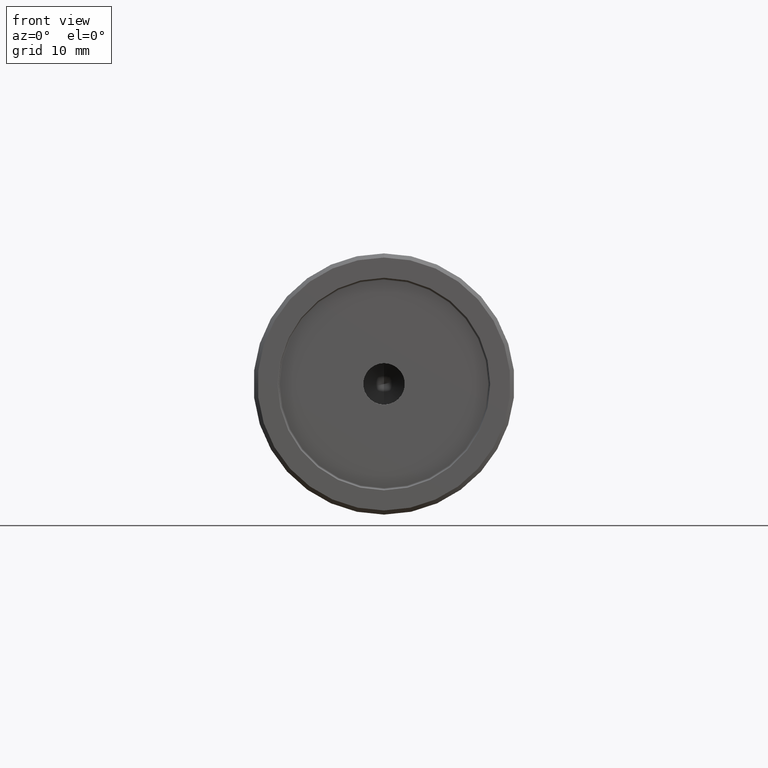
[diagram: clean part render]
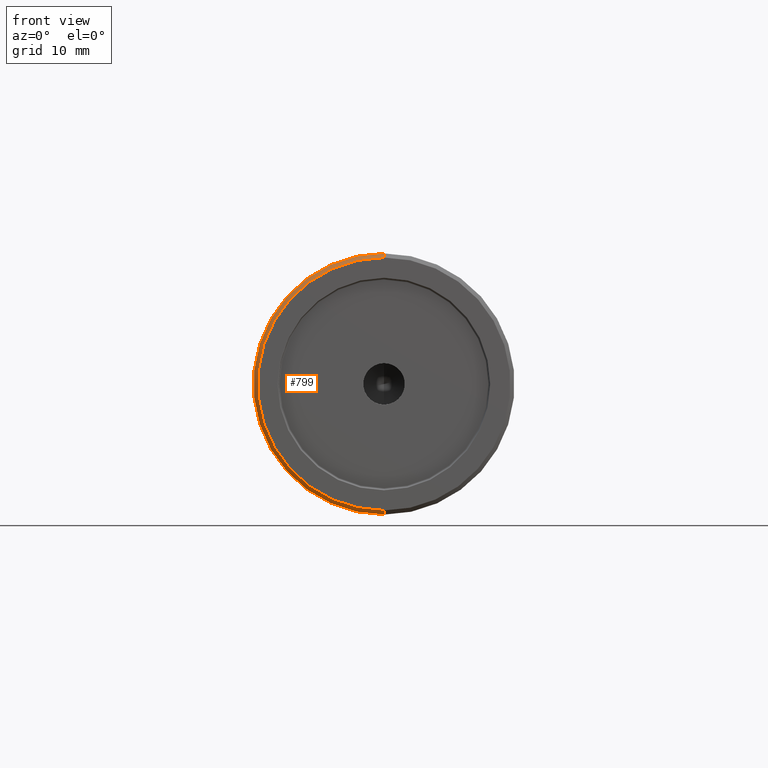
[diagram: same view with one face highlighted and labeled with its STEP entity id]
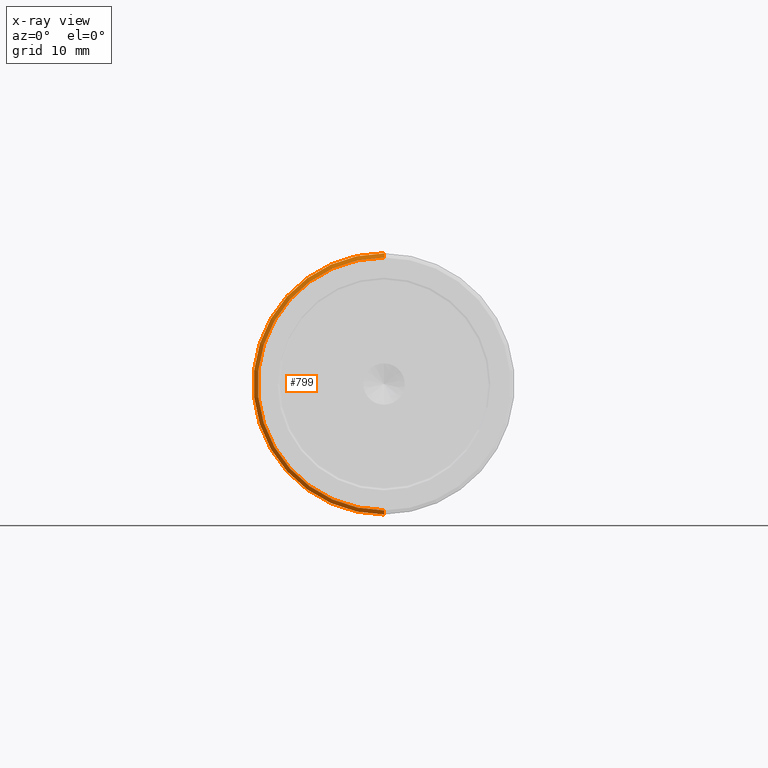
[diagram: x-ray of the same camera — body ghosted, the highlighted face saturated]
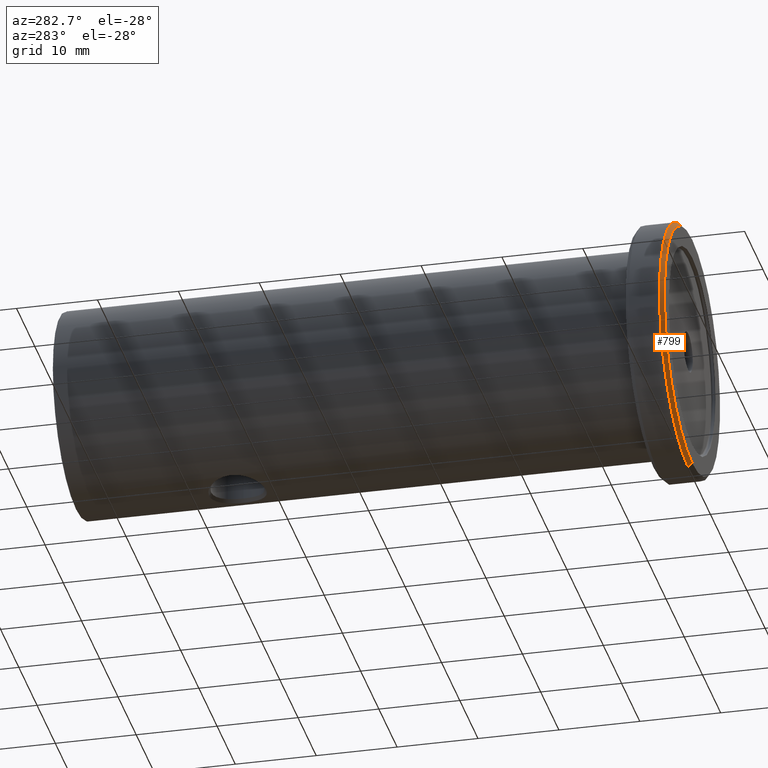
[diagram: same view with one face highlighted and labeled with its STEP entity id]
A machine part, front view. The second image highlights one B-rep face of the part: STEP entity #799.
The next image is the same camera in x-ray: the body ghosted, the highlighted face saturated — about 0% of this face is hidden behind the body in this view.
A second angle (auxiliary view) of the same face is appended — the face is thin or edge-on in the first view.
In plain terms, the highlighted conical surface has half-angle 45 deg.
Its self-contained STEP definition (entity closure, byte-faithful):
#10 = ORIENTED_EDGE ( 'NONE', *, *, #63, .T. ) ;
#27 = AXIS2_PLACEMENT_3D ( 'NONE', #411, #832, #514 ) ;
#63 = EDGE_CURVE ( 'NONE', #218, #770, #1310, .T. ) ;
#94 = DIRECTION ( 'NONE',  ( -0.000000000000000000, -1.000000000000000000, -0.000000000000000000 ) ) ;
#126 = VERTEX_POINT ( 'NONE', #1365 ) ;
#136 = ORIENTED_EDGE ( 'NONE', *, *, #381, .F. ) ;
#173 = CARTESIAN_POINT ( 'NONE',  ( 0.000000000000000000, -1.734723475976807094E-15, 0.000000000000000000 ) ) ;
#218 = VERTEX_POINT ( 'NONE', #443 ) ;
#245 = AXIS2_PLACEMENT_3D ( 'NONE', #725, #94, #509 ) ;
#250 = DIRECTION ( 'NONE',  ( 0.000000000000000000, 0.000000000000000000, -1.000000000000000000 ) ) ;
#344 = VECTOR ( 'NONE', #361, 1000.000000000000000 ) ;
#361 = DIRECTION ( 'NONE',  ( 0.000000000000000000, 0.7071067811865487940, 0.7071067811865463515 ) ) ;
#372 = DIRECTION ( 'NONE',  ( 8.659560562354918067E-17, 0.7071067811865487940, -0.7071067811865463515 ) ) ;
#381 = EDGE_CURVE ( 'NONE', #218, #126, #1268, .T. ) ;
#411 = CARTESIAN_POINT ( 'NONE',  ( 0.000000000000000000, 0.5000000000000004441, 0.000000000000000000 ) ) ;
#422 = CONICAL_SURFACE ( 'NONE', #27, 15.75000000000000000, 0.7853981633974466137 ) ;
#443 = CARTESIAN_POINT ( 'NONE',  ( 0.000000000000000000, -1.734723475976807094E-15, 15.25000000000000000 ) ) ;
#465 = EDGE_CURVE ( 'NONE', #770, #935, #996, .T. ) ;
#509 = DIRECTION ( 'NONE',  ( 0.000000000000000000, 0.000000000000000000, -1.000000000000000000 ) ) ;
#514 = DIRECTION ( 'NONE',  ( 0.000000000000000000, 0.000000000000000000, 1.000000000000000000 ) ) ;
#568 = VECTOR ( 'NONE', #372, 1000.000000000000000 ) ;
#594 = EDGE_CURVE ( 'NONE', #126, #935, #995, .T. ) ;
#725 = CARTESIAN_POINT ( 'NONE',  ( 0.000000000000000000, 0.5000000000000004441, 0.000000000000000000 ) ) ;
#770 = VERTEX_POINT ( 'NONE', #1273 ) ;
#778 = CARTESIAN_POINT ( 'NONE',  ( 1.928818708657081344E-15, 0.5000000000000004441, -15.75000000000000000 ) ) ;
#799 = ADVANCED_FACE ( 'NONE', ( #1367 ), #422, .T. ) ;
#827 = ORIENTED_EDGE ( 'NONE', *, *, #594, .F. ) ;
#832 = DIRECTION ( 'NONE',  ( 0.000000000000000000, 1.000000000000000000, 0.000000000000000000 ) ) ;
#914 = CARTESIAN_POINT ( 'NONE',  ( 0.000000000000000000, 0.5000000000000004441, 15.75000000000000000 ) ) ;
#919 = ORIENTED_EDGE ( 'NONE', *, *, #465, .T. ) ;
#935 = VERTEX_POINT ( 'NONE', #982 ) ;
#982 = CARTESIAN_POINT ( 'NONE',  ( 1.928818708657081344E-15, 0.5000000000000004441, -15.75000000000000000 ) ) ;
#995 = LINE ( 'NONE', #778, #568 ) ;
#996 = CIRCLE ( 'NONE', #245, 15.75000000000000000 ) ;
#1013 = DIRECTION ( 'NONE',  ( -0.000000000000000000, -1.000000000000000000, -0.000000000000000000 ) ) ;
#1068 = AXIS2_PLACEMENT_3D ( 'NONE', #173, #1013, #250 ) ;
#1077 = EDGE_LOOP ( 'NONE', ( #827, #136, #10, #919 ) ) ;
#1268 = CIRCLE ( 'NONE', #1068, 15.25000000000000000 ) ;
#1273 = CARTESIAN_POINT ( 'NONE',  ( 0.000000000000000000, 0.5000000000000004441, 15.75000000000000000 ) ) ;
#1310 = LINE ( 'NONE', #914, #344 ) ;
#1365 = CARTESIAN_POINT ( 'NONE',  ( 1.898202538678397557E-15, -1.734723475976807094E-15, -15.25000000000000000 ) ) ;
#1367 = FACE_OUTER_BOUND ( 'NONE', #1077, .T. ) ;